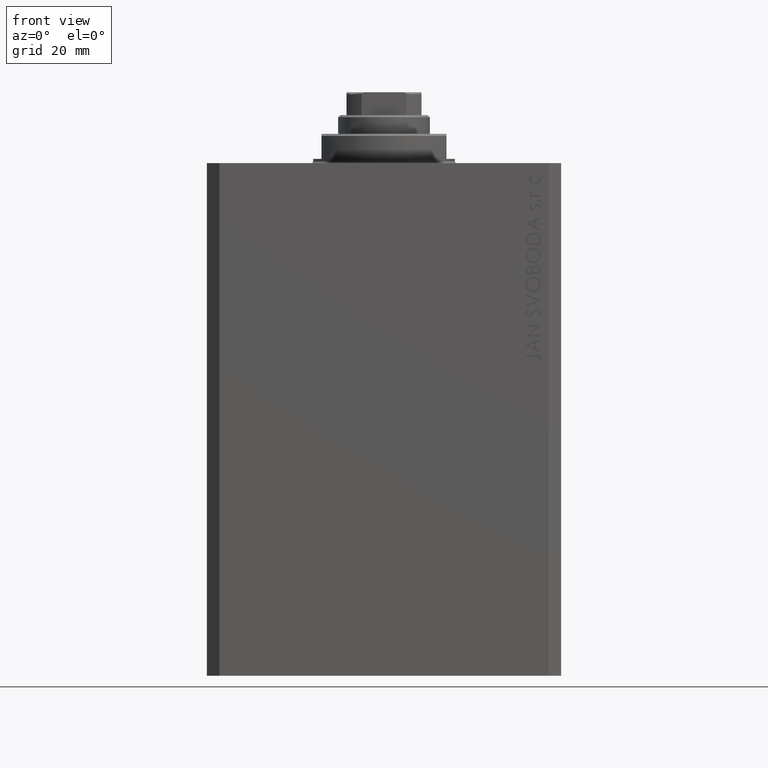
[diagram: clean part render]
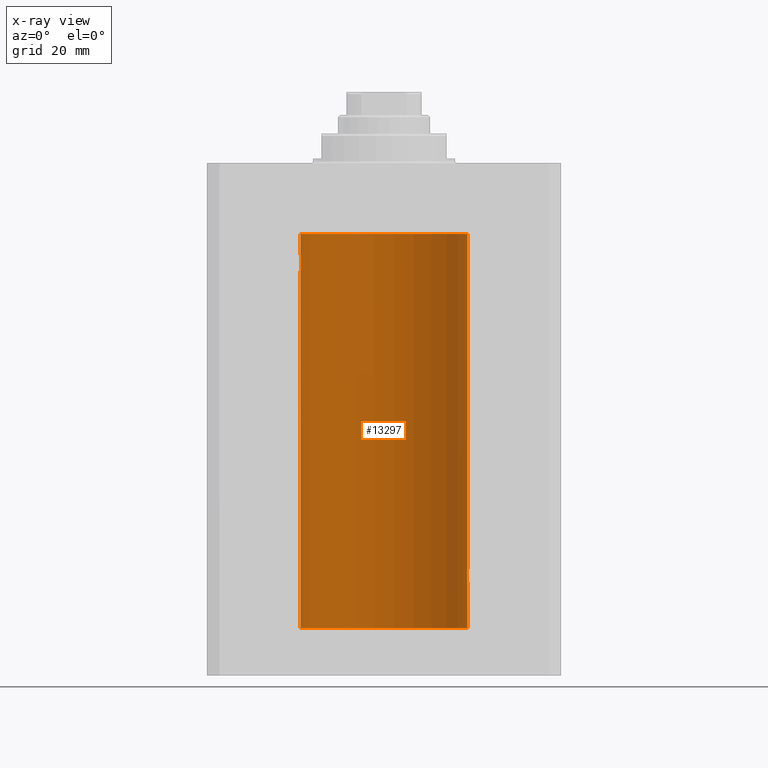
[diagram: x-ray — body ghosted, one internal face saturated and labeled with its STEP entity id]
A machine part, front view, then the same camera in x-ray: the body is ghosted and one INTERNAL B-rep face — a face not visible from any outside direction — is saturated and labeled: STEP entity #13297.
In plain terms, the highlighted cylindrical surface (partial cylindrical patch) has radius 20 mm, axis along (0, 0, 1).
Its self-contained STEP definition (entity closure, byte-faithful):
#540 = CARTESIAN_POINT ( 'NONE',  ( 20.00000000000000000, -1.553109350199128042E-23, -97.00000000000000000 ) ) ;
#684 = EDGE_CURVE ( 'NONE', #19567, #42695, #30120, .T. ) ;
#1063 = DIRECTION ( 'NONE',  ( -0.000000000000000000, -0.000000000000000000, 1.000000000000000000 ) ) ;
#1289 = CARTESIAN_POINT ( 'NONE',  ( 19.98071536551674754, 0.8863972468204365240, -97.20236805399481739 ) ) ;
#1703 = CARTESIAN_POINT ( 'NONE',  ( -19.98996196681220638, 0.6450624715427617506, -22.10234886833925572 ) ) ;
#1730 = CARTESIAN_POINT ( 'NONE',  ( 19.90611763847108762, 1.935753518394741635, -98.48042243434849752 ) ) ;
#1970 = CARTESIAN_POINT ( 'NONE',  ( 20.00000000000000000, 0.000000000000000000, -111.5999999999999943 ) ) ;
#2077 = EDGE_CURVE ( 'NONE', #19567, #33882, #43089, .T. ) ;
#2166 = CARTESIAN_POINT ( 'NONE',  ( 19.94332236886613074, 1.507531922383789524, -97.67909949904074551 ) ) ;
#3203 = EDGE_CURVE ( 'NONE', #35150, #32566, #11354, .T. ) ;
#3316 = DIRECTION ( 'NONE',  ( -0.000000000000000000, -0.000000000000000000, 1.000000000000000000 ) ) ;
#3963 = ORIENTED_EDGE ( 'NONE', *, *, #30855, .F. ) ;
#3999 = ORIENTED_EDGE ( 'NONE', *, *, #17871, .T. ) ;
#4870 = CARTESIAN_POINT ( 'NONE',  ( -19.90522393307484705, 1.947330458682957177, -23.47486091545001941 ) ) ;
#5740 = VERTEX_POINT ( 'NONE', #18102 ) ;
#5836 = VECTOR ( 'NONE', #3316, 1000.000000000000000 ) ;
#5838 = DIRECTION ( 'NONE',  ( 0.000000000000000000, 0.000000000000000000, 1.000000000000000000 ) ) ;
#5969 = CARTESIAN_POINT ( 'NONE',  ( 19.99369727434158506, 0.5181068333511539281, -100.9361228828299630 ) ) ;
#6012 = ORIENTED_EDGE ( 'NONE', *, *, #16383, .F. ) ;
#6122 = CARTESIAN_POINT ( 'NONE',  ( -20.00000000000000000, 2.449293598294706513E-15, -111.5999999999999943 ) ) ;
#6681 = CARTESIAN_POINT ( 'NONE',  ( 19.99867993937906618, 0.2631387813862826053, -97.01308095003095389 ) ) ;
#6703 = CARTESIAN_POINT ( 'NONE',  ( -20.00000000000000000, 2.449293582768784389E-15, -25.99999999999999645 ) ) ;
#7511 = CIRCLE ( 'NONE', #29816, 20.00000000000000000 ) ;
#8461 = CARTESIAN_POINT ( 'NONE',  ( -19.93684595445884611, 1.598854313793185655, -22.77049887769366521 ) ) ;
#8549 = CARTESIAN_POINT ( 'NONE',  ( 20.00000000000000000, 0.000000000000000000, -111.5999999999999943 ) ) ;
#8710 = CARTESIAN_POINT ( 'NONE',  ( 19.91911433329477177, 1.797615436563606561, -98.11357106075776358 ) ) ;
#9291 = CARTESIAN_POINT ( 'NONE',  ( -19.95654117037011588, 1.321069663197671273, -25.50738641543989615 ) ) ;
#9338 = CARTESIAN_POINT ( 'NONE',  ( 19.99868904672146641, 0.2623009746877876802, -100.9870089850981429 ) ) ;
#9512 = CARTESIAN_POINT ( 'NONE',  ( -19.94330239452387232, 1.507796451871729504, -25.32060165083834136 ) ) ;
#9738 = CARTESIAN_POINT ( 'NONE',  ( -19.99370013622814568, 0.5179893069484621249, -22.06384771616670903 ) ) ;
#9998 = CARTESIAN_POINT ( 'NONE',  ( 19.93682487288204541, 1.599118048130817149, -100.2291703518122148 ) ) ;
#11011 = CARTESIAN_POINT ( 'NONE',  ( 0.000000000000000000, 0.000000000000000000, -17.00000000000000000 ) ) ;
#11354 = LINE ( 'NONE', #25101, #36532 ) ;
#11629 = CARTESIAN_POINT ( 'NONE',  ( -19.99999999999999645, 0.1305706983324449733, -25.99999999999998934 ) ) ;
#11674 = DIRECTION ( 'NONE',  ( 1.000000000000000000, 0.000000000000000000, 0.000000000000000000 ) ) ;
#12084 = CARTESIAN_POINT ( 'NONE',  ( 19.90980722176544049, 1.897923463361389285, -98.35574535366806970 ) ) ;
#13103 = DIRECTION ( 'NONE',  ( -0.000000000000000000, -0.000000000000000000, 1.000000000000000000 ) ) ;
#13112 = CARTESIAN_POINT ( 'NONE',  ( -19.93679350243183990, 1.590453176650918676, -25.21960275349743696 ) ) ;
#13297 = ADVANCED_FACE ( 'NONE', ( #38706 ), #27677, .F. ) ;
#15003 = CARTESIAN_POINT ( 'NONE',  ( -19.89974399317116394, 2.000047251570890250, -24.12981181290706445 ) ) ;
#15448 = CARTESIAN_POINT ( 'NONE',  ( -19.90610216711450420, 1.935912154109700190, -24.51899474186111050 ) ) ;
#16355 = CARTESIAN_POINT ( 'NONE',  ( 19.99366205580918887, 0.5195372307044503479, -97.06423906555805559 ) ) ;
#16383 = EDGE_CURVE ( 'NONE', #19118, #33882, #31142, .T. ) ;
#16407 = CARTESIAN_POINT ( 'NONE',  ( 0.000000000000000000, 0.000000000000000000, -111.5999999999999943 ) ) ;
#16490 = CARTESIAN_POINT ( 'NONE',  ( -19.99868965376115071, 0.2622407139811102628, -22.01298505384673732 ) ) ;
#16812 = EDGE_CURVE ( 'NONE', #32566, #42695, #35346, .T. ) ;
#17636 = ORIENTED_EDGE ( 'NONE', *, *, #22852, .T. ) ;
#17871 = EDGE_CURVE ( 'NONE', #28405, #41034, #25858, .T. ) ;
#18102 = CARTESIAN_POINT ( 'NONE',  ( 19.89974874213236333, 2.000000000000336620, -99.00000000000000000 ) ) ;
#18147 = CARTESIAN_POINT ( 'NONE',  ( -20.00000000000000000, 2.449293598294706513E-15, -17.00000000000000000 ) ) ;
#18416 = CARTESIAN_POINT ( 'NONE',  ( 19.89974874213236333, 2.000000000000336620, -99.00000000000000000 ) ) ;
#18603 = CARTESIAN_POINT ( 'NONE',  ( -19.91909332229799290, 1.797847595792767317, -24.88596189455837759 ) ) ;
#19082 = CARTESIAN_POINT ( 'NONE',  ( -20.00000000000000000, 2.449293598294706513E-15, -111.5999999999999943 ) ) ;
#19118 = VERTEX_POINT ( 'NONE', #6122 ) ;
#19567 = VERTEX_POINT ( 'NONE', #26064 ) ;
#19924 = CARTESIAN_POINT ( 'NONE',  ( 19.98066923111604964, 0.8874387315505228857, -100.7971214522023899 ) ) ;
#20144 = CARTESIAN_POINT ( 'NONE',  ( 19.98995738555794688, 0.6452086089795042723, -100.8976034536016044 ) ) ;
#20371 = CARTESIAN_POINT ( 'NONE',  ( 19.89974874213236689, 2.000000000000336620, -99.26114132155828429 ) ) ;
#21992 = CARTESIAN_POINT ( 'NONE',  ( -19.95645382900617903, 1.322305185229311064, -22.49384229619286657 ) ) ;
#22199 = CARTESIAN_POINT ( 'NONE',  ( -19.89975827978156175, 1.999905101582726719, -23.73819846102561115 ) ) ;
#22316 = ORIENTED_EDGE ( 'NONE', *, *, #16812, .T. ) ;
#22445 = CARTESIAN_POINT ( 'NONE',  ( 19.93681418096177183, 1.590194273034202688, -97.78006300821549246 ) ) ;
#22852 = EDGE_CURVE ( 'NONE', #41034, #5740, #30646, .T. ) ;
#23123 = CARTESIAN_POINT ( 'NONE',  ( 20.00000000000000000, 0.1305404422160218736, -96.99999999999998579 ) ) ;
#23262 = CARTESIAN_POINT ( 'NONE',  ( -19.97510079925438475, 1.003547732426807171, -25.73489454601984150 ) ) ;
#23353 = CARTESIAN_POINT ( 'NONE',  ( 19.98998987637478209, 0.6441982143731844745, -97.10205654639885609 ) ) ;
#23406 = DIRECTION ( 'NONE',  ( 1.000000000000000000, 0.000000000000000000, 0.000000000000000000 ) ) ;
#23745 = CARTESIAN_POINT ( 'NONE',  ( 19.92371056170336274, 1.748080295468898537, -100.0060386593725070 ) ) ;
#24288 = DIRECTION ( 'NONE',  ( 1.000000000000000000, 0.000000000000000000, 0.000000000000000000 ) ) ;
#24768 = DIRECTION ( 'NONE',  ( 0.000000000000000000, 0.000000000000000000, 1.000000000000000000 ) ) ;
#25101 = CARTESIAN_POINT ( 'NONE',  ( 20.00000000000000000, 0.000000000000000000, -111.5999999999999943 ) ) ;
#25177 = CARTESIAN_POINT ( 'NONE',  ( 19.95655800881796083, 1.320814917468111194, -97.49239309359698780 ) ) ;
#25378 = CARTESIAN_POINT ( 'NONE',  ( -19.90978941500366872, 1.898109641280506521, -24.64371130639850804 ) ) ;
#25858 = LINE ( 'NONE', #1970, #5836 ) ;
#26064 = CARTESIAN_POINT ( 'NONE',  ( -20.00000000000000000, -1.269718202421245235E-16, -22.00000000000000000 ) ) ;
#27131 = CARTESIAN_POINT ( 'NONE',  ( 20.00000000000000000, 0.1322642052205942886, -101.0000000000000426 ) ) ;
#27677 = CYLINDRICAL_SURFACE ( 'NONE', #41703, 20.00000000000000000 ) ;
#27762 = CARTESIAN_POINT ( 'NONE',  ( -20.00000000000000000, 2.449293598294706513E-15, -111.5999999999999943 ) ) ;
#28405 = VERTEX_POINT ( 'NONE', #8549 ) ;
#29218 = CARTESIAN_POINT ( 'NONE',  ( 19.89974874213236689, 2.000000000000336620, -98.86948983741758923 ) ) ;
#29517 = EDGE_LOOP ( 'NONE', ( #6012, #3963, #3999, #17636, #41965, #37159, #22316, #38605, #42708 ) ) ;
#29612 = CARTESIAN_POINT ( 'NONE',  ( 19.90520750556430229, 1.947496194184494378, -99.52455416993456083 ) ) ;
#29797 = CARTESIAN_POINT ( 'NONE',  ( -19.99867931558985745, 0.2631998640366461362, -25.98691292011447374 ) ) ;
#29816 = AXIS2_PLACEMENT_3D ( 'NONE', #16407, #5838, #23406 ) ;
#29843 = CARTESIAN_POINT ( 'NONE',  ( 19.97516523393783316, 1.002309963754524524, -100.7356447155611079 ) ) ;
#30020 = CARTESIAN_POINT ( 'NONE',  ( -19.97517568592526160, 1.002099838626314909, -22.26423634872104884 ) ) ;
#30063 = CARTESIAN_POINT ( 'NONE',  ( 19.96307037068151757, 1.219701915132744841, -100.5904134935036751 ) ) ;
#30120 = LINE ( 'NONE', #19082, #37594 ) ;
#30179 = B_SPLINE_CURVE_WITH_KNOTS ( 'NONE', 3,
 ( #18416, #29218, #32609, #1730, #12084, #8710, #33047, #22445, #2166, #25177, #38937, #35566, #1289, #23353, #16355, #6681, #23123, #37332 ),
 .UNSPECIFIED., .F., .F.,
 ( 4, 2, 2, 2, 2, 2, 2, 2, 4 ),
 ( 0.003129134698348759892, 0.003520095305221480463, 0.003911055912094201469, 0.004302016518966922040, 0.004692977125839642612, 0.005083937732712363183, 0.005474898339585083755, 0.005865858946457804327, 0.006256819553330524898 ),
 .UNSPECIFIED. ) ;
#30241 = CARTESIAN_POINT ( 'NONE',  ( -19.98067755938510714, 0.8872481584516758168, -22.20278656943303375 ) ) ;
#30646 = B_SPLINE_CURVE_WITH_KNOTS ( 'NONE', 3,
 ( #40670, #27131, #9338, #5969, #20144, #19924, #29843, #30063, #43822, #9998, #23745, #29612, #20371, #37073 ),
 .UNSPECIFIED., .F., .F.,
 ( 4, 2, 2, 2, 2, 2, 4 ),
 ( 1.911692756536875168E-18, 0.0003911418372936038769, 0.0007822836745872059107, 0.001173425511880807782, 0.001564567349174409870, 0.002346851023761584772, 0.003129134698348759892 ),
 .UNSPECIFIED. ) ;
#30855 = EDGE_CURVE ( 'NONE', #28405, #19118, #7511, .T. ) ;
#31083 = EDGE_CURVE ( 'NONE', #5740, #35150, #30179, .T. ) ;
#31142 = LINE ( 'NONE', #27762, #31743 ) ;
#31743 = VECTOR ( 'NONE', #13103, 1000.000000000000000 ) ;
#32150 = CARTESIAN_POINT ( 'NONE',  ( -19.98070694681040038, 0.8865903856744316025, -25.79753901127162763 ) ) ;
#32360 = CARTESIAN_POINT ( 'NONE',  ( -19.96304379627741454, 1.220099331833899736, -25.59007067689674386 ) ) ;
#32566 = VERTEX_POINT ( 'NONE', #35538 ) ;
#32582 = CARTESIAN_POINT ( 'NONE',  ( -19.90106552791689154, 1.987020435121076734, -24.26241417820002155 ) ) ;
#32609 = CARTESIAN_POINT ( 'NONE',  ( 19.90107458412648711, 1.986930174329755161, -98.73692013941791856 ) ) ;
#33047 = CARTESIAN_POINT ( 'NONE',  ( 19.92473605353366040, 1.734984354167257159, -97.99660905888588047 ) ) ;
#33882 = VERTEX_POINT ( 'NONE', #6703 ) ;
#34887 = CARTESIAN_POINT ( 'NONE',  ( 0.000000000000000000, 0.000000000000000000, -111.5999999999999943 ) ) ;
#35150 = VERTEX_POINT ( 'NONE', #540 ) ;
#35346 = CIRCLE ( 'NONE', #41097, 20.00000000000000000 ) ;
#35538 = CARTESIAN_POINT ( 'NONE',  ( 20.00000000000000000, 0.000000000000000000, -17.00000000000000000 ) ) ;
#35566 = CARTESIAN_POINT ( 'NONE',  ( 19.97511131722831479, 1.003336743019912936, -97.26498565174388489 ) ) ;
#35749 = CARTESIAN_POINT ( 'NONE',  ( -19.92373272380676497, 1.747830109444745927, -22.99354240926169624 ) ) ;
#36532 = VECTOR ( 'NONE', #41785, 1000.000000000000000 ) ;
#36680 = DIRECTION ( 'NONE',  ( -0.000000000000000000, -0.000000000000000000, 1.000000000000000000 ) ) ;
#36797 = CARTESIAN_POINT ( 'NONE',  ( -20.00000000000000000, 2.449293582768784389E-15, -25.99999999999999645 ) ) ;
#37073 = CARTESIAN_POINT ( 'NONE',  ( 19.89974874213236333, 2.000000000000336620, -99.00000000000000000 ) ) ;
#37159 = ORIENTED_EDGE ( 'NONE', *, *, #3203, .T. ) ;
#37332 = CARTESIAN_POINT ( 'NONE',  ( 20.00000000000000000, -1.553109350199128042E-23, -97.00000000000000000 ) ) ;
#37594 = VECTOR ( 'NONE', #36680, 1000.000000000000000 ) ;
#38605 = ORIENTED_EDGE ( 'NONE', *, *, #684, .F. ) ;
#38706 = FACE_OUTER_BOUND ( 'NONE', #29517, .T. ) ;
#38937 = CARTESIAN_POINT ( 'NONE',  ( 19.96305842179988588, 1.219858681717333138, -97.40974712539565417 ) ) ;
#39135 = CARTESIAN_POINT ( 'NONE',  ( -19.99999999999999645, 0.1322335637814733289, -21.99999999999999645 ) ) ;
#40174 = CARTESIAN_POINT ( 'NONE',  ( -19.98998539619404013, 0.6443418861413118259, -25.89789687358865322 ) ) ;
#40399 = CARTESIAN_POINT ( 'NONE',  ( -19.92471474456649716, 1.735228749583835439, -25.00297226784954674 ) ) ;
#40625 = CARTESIAN_POINT ( 'NONE',  ( -20.00000000000000000, -1.269718202421245235E-16, -22.00000000000000000 ) ) ;
#40670 = CARTESIAN_POINT ( 'NONE',  ( 20.00000000000000000, 1.967327733996653312E-15, -101.0000000000000000 ) ) ;
#41034 = VERTEX_POINT ( 'NONE', #44559 ) ;
#41097 = AXIS2_PLACEMENT_3D ( 'NONE', #11011, #24768, #11674 ) ;
#41703 = AXIS2_PLACEMENT_3D ( 'NONE', #34887, #1063, #24288 ) ;
#41785 = DIRECTION ( 'NONE',  ( -0.000000000000000000, -0.000000000000000000, 1.000000000000000000 ) ) ;
#41965 = ORIENTED_EDGE ( 'NONE', *, *, #31083, .T. ) ;
#42501 = CARTESIAN_POINT ( 'NONE',  ( -19.99365919015135518, 0.5196544277756711683, -25.93573148867292133 ) ) ;
#42695 = VERTEX_POINT ( 'NONE', #18147 ) ;
#42708 = ORIENTED_EDGE ( 'NONE', *, *, #2077, .T. ) ;
#43089 = B_SPLINE_CURVE_WITH_KNOTS ( 'NONE', 3,
 ( #40625, #39135, #16490, #9738, #1703, #30241, #30020, #44002, #21992, #8461, #35749, #4870, #22199, #15003, #32582, #15448, #25378, #18603, #40399, #13112, #9512, #9291, #32360, #23262, #32150, #40174, #42501, #29797, #11629, #36797 ),
 .UNSPECIFIED., .F., .F.,
 ( 4, 2, 2, 2, 2, 2, 2, 2, 2, 2, 2, 2, 2, 2, 4 ),
 ( 1.233811249882840126E-19, 0.0003910512220831129202, 0.0007821024441662257319, 0.001173153666249338381, 0.001564204888332450813, 0.002346307332498675461, 0.003128409776664900326, 0.003519460998748018179, 0.003910512220831135165, 0.004301563442914253452, 0.004692614664997370871, 0.005083665887080488291, 0.005474717109163606578, 0.005865768331246723997, 0.006256819553329842284 ),
 .UNSPECIFIED. ) ;
#43822 = CARTESIAN_POINT ( 'NONE',  ( 19.95643710845398999, 1.322557776536547047, -100.5059384114668717 ) ) ;
#44002 = CARTESIAN_POINT ( 'NONE',  ( -19.96308513509966787, 1.219458756546270672, -22.40940266542446935 ) ) ;
#44559 = CARTESIAN_POINT ( 'NONE',  ( 20.00000000000000000, 1.967327733996653312E-15, -101.0000000000000000 ) ) ;